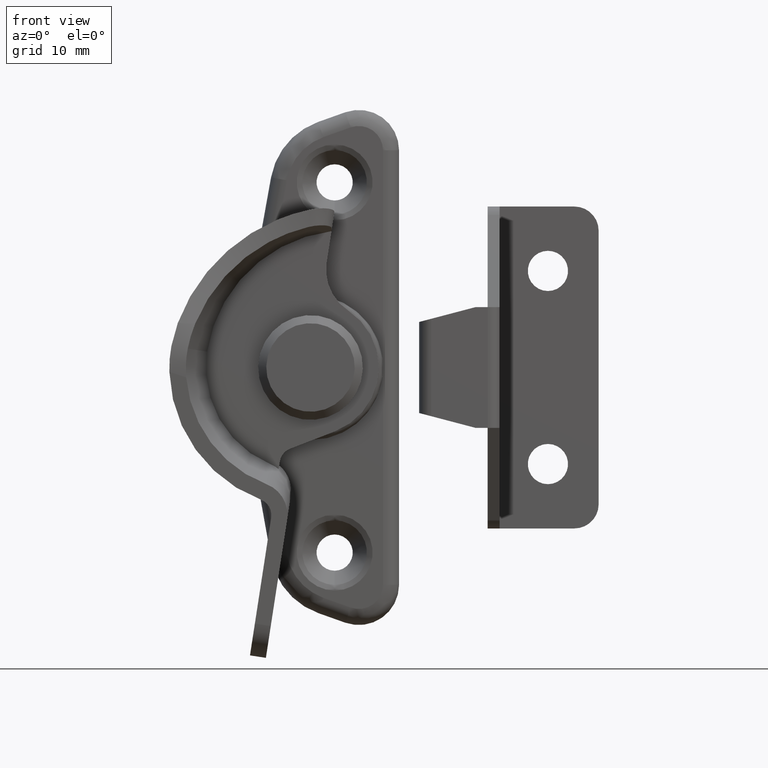
[diagram: clean part render]
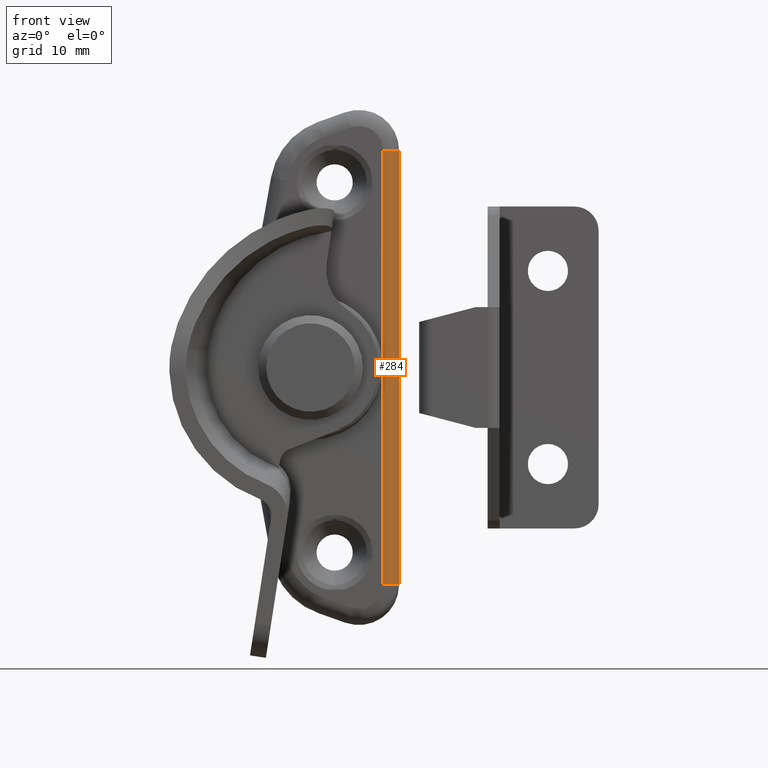
[diagram: same view with one face highlighted and labeled with its STEP entity id]
A machine part, front view. The second image highlights one B-rep face of the part: STEP entity #284.
In plain terms, the highlighted cylindrical surface (edge-blend (fillet) strip) has radius 2 mm, axis along (0, 0, 1).
Its self-contained STEP definition (entity closure, byte-faithful):
#284=ADVANCED_FACE('',(#1388),#1387,.T.);
#1387=CYLINDRICAL_SURFACE('',#3392,2.00000000000E+00);
#1388=FACE_OUTER_BOUND('',#3393,.T.);
#3389=CARTESIAN_POINT('',(-1.30000000000E+01,5.50000000000E+00,0.00000000000E+00));
#3390=DIRECTION('',(-0.00000000000E+00,-0.00000000000E+00,1.00000000000E+00));
#3391=DIRECTION('',(-1.00000000000E+00,-0.00000000000E+00,-0.00000000000E+00));
#3392=AXIS2_PLACEMENT_3D('',#3389,#3390,#3391);
#3393=EDGE_LOOP('',(#5004,#5005,#5006,#5007,#5008));
#5004=ORIENTED_EDGE('',*,*,#5837,.T.);
#5005=ORIENTED_EDGE('',*,*,#5838,.F.);
#5006=ORIENTED_EDGE('',*,*,#5839,.T.);
#5007=ORIENTED_EDGE('',*,*,#5834,.T.);
#5008=ORIENTED_EDGE('',*,*,#5840,.T.);
#5834=EDGE_CURVE('',#7880,#7881,#7882,.T.);
#5837=EDGE_CURVE('',#7900,#7901,#7902,.T.);
#5838=EDGE_CURVE('',#7908,#7901,#7909,.T.);
#5839=EDGE_CURVE('',#7908,#7880,#7915,.T.);
#5840=EDGE_CURVE('',#7881,#7900,#7921,.T.);
#7880=VERTEX_POINT('',#10962);
#7881=VERTEX_POINT('',#10963);
#7882=CIRCLE('',#10967,2.00000000000E+00);
#7900=VERTEX_POINT('',#10976);
#7901=VERTEX_POINT('',#10977);
#7902=LINE('',#10978,#10979);
#7908=VERTEX_POINT('',#10981);
#7909=CIRCLE('',#10985,2.00000000000E+00);
#7915=LINE('',#10986,#10987);
#7921=LINE('',#10989,#10990);
#10962=CARTESIAN_POINT('',(-1.10000000000E+01,5.50000000000E+00,2.69999943720E+01));
#10963=CARTESIAN_POINT('',(-1.30000000000E+01,3.50000000000E+00,2.69999945465E+01));
#10964=CARTESIAN_POINT('',(-1.30000000000E+01,5.50000000000E+00,2.69999943720E+01));
#10965=DIRECTION('',(0.00000000000E+00,-8.72664614182E-08,-1.00000000000E+00));
#10966=DIRECTION('',(-0.00000000000E+00,1.00000000000E+00,-8.72664614182E-08));
#10967=AXIS2_PLACEMENT_3D('',#10964,#10965,#10966);
#10976=CARTESIAN_POINT('',(-1.30000000000E+01,3.50000000000E+00,0.00000000000E+00));
#10977=CARTESIAN_POINT('',(-1.30000000000E+01,3.50000000000E+00,-2.70000044063E+01));
#10978=CARTESIAN_POINT('',(-1.30000000000E+01,3.50000000000E+00,0.00000000000E+00));
#10979=VECTOR('',#10980,2.70000044063E+01);
#10980=DIRECTION('',(0.00000000000E+00,0.00000000000E+00,-1.00000000000E+00));
#10981=CARTESIAN_POINT('',(-1.10000000000E+01,5.50000000000E+00,-2.70000044063E+01));
#10982=CARTESIAN_POINT('',(-1.30000000000E+01,5.50000000000E+00,-2.69999991913E+01));
#10983=DIRECTION('',(-2.60747636502E-06,2.60747636504E-06,-9.99999999993E-01));
#10984=DIRECTION('',(2.20861839036E-27,9.99999999997E-01,2.60747636505E-06));
#10985=AXIS2_PLACEMENT_3D('',#10982,#10983,#10984);
#10986=CARTESIAN_POINT('',(-1.10000000000E+01,5.50000000000E+00,-2.70000044063E+01));
#10987=VECTOR('',#10988,5.39999987783E+01);
#10988=DIRECTION('',(0.00000000000E+00,0.00000000000E+00,1.00000000000E+00));
#10989=CARTESIAN_POINT('',(-1.30000000000E+01,3.50000000000E+00,2.69999945465E+01));
#10990=VECTOR('',#10991,2.69999945465E+01);
#10991=DIRECTION('',(0.00000000000E+00,0.00000000000E+00,-1.00000000000E+00));